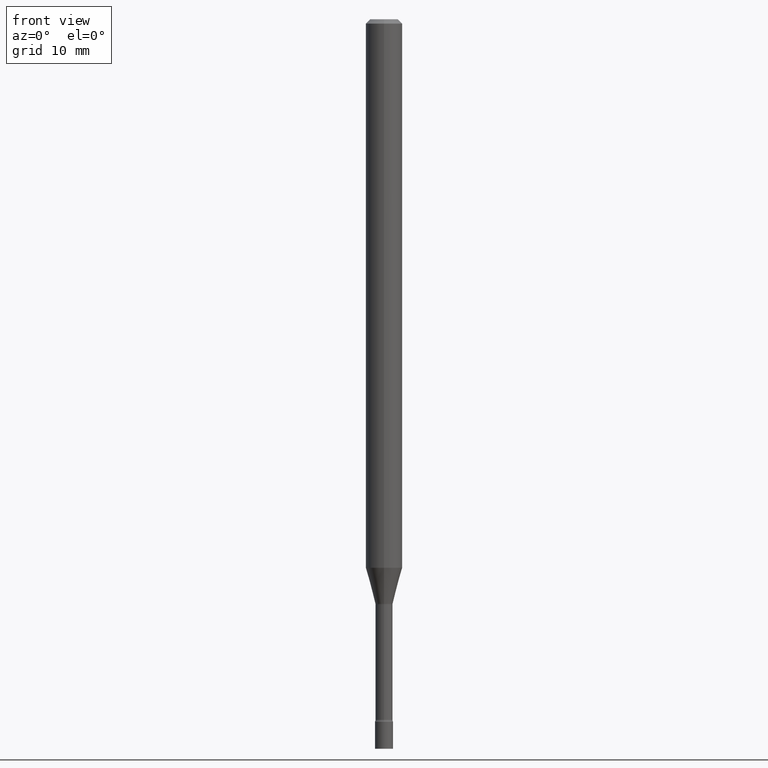
[diagram: clean part render]
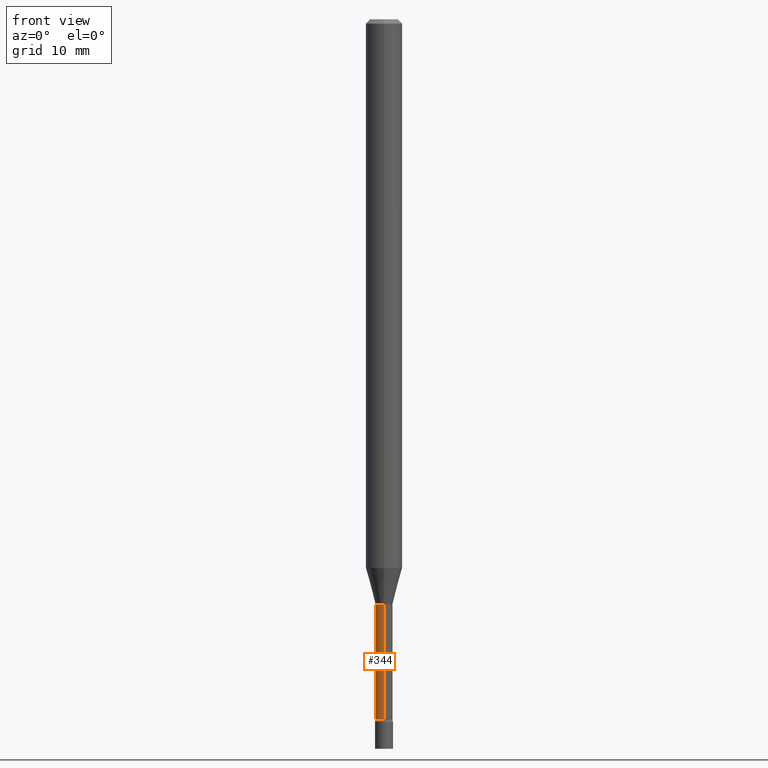
[diagram: same view with one face highlighted and labeled with its STEP entity id]
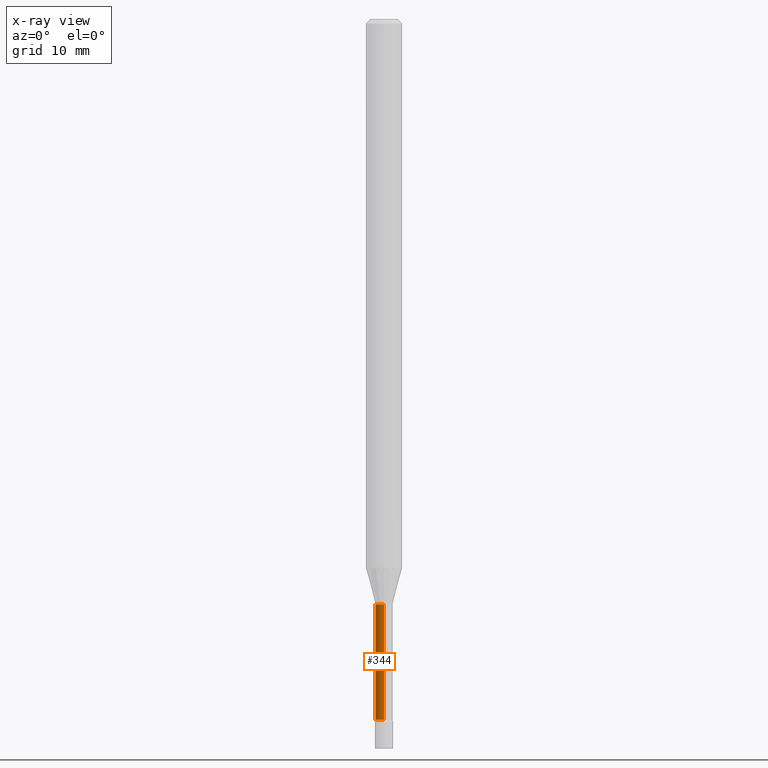
[diagram: x-ray of the same camera — body ghosted, the highlighted face saturated]
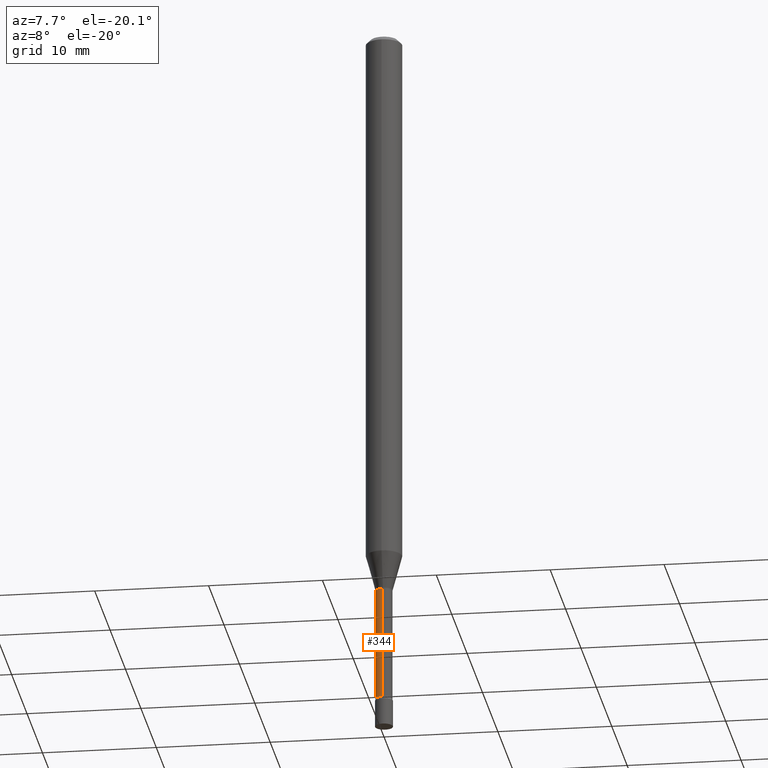
[diagram: same view with one face highlighted and labeled with its STEP entity id]
A machine part, front view. The second image highlights one B-rep face of the part: STEP entity #344.
The next image is the same camera in x-ray: the body ghosted, the highlighted face saturated — about 0% of this face is hidden behind the body in this view.
A second angle (auxiliary view) of the same face is appended — the face is thin or edge-on in the first view.
In plain terms, the highlighted cylindrical surface (edge-blend (fillet) strip) has radius 0.7404 mm, axis along (-0, 0, 1).
Its self-contained STEP definition (entity closure, byte-faithful):
#20 = FACE_OUTER_BOUND ( 'NONE', #420, .T. ) ;
#22 = DIRECTION ( 'NONE',  ( -6.982962677686265922E-15, -1.000000000000000000, 3.491464599128644063E-15 ) ) ;
#25 = CARTESIAN_POINT ( 'NONE',  ( -2.035533620544962127E-16, -0.02915000000000841224, -2.399783525791634897 ) ) ;
#33 = AXIS2_PLACEMENT_3D ( 'NONE', #188, #301, #22 ) ;
#34 = VERTEX_POINT ( 'NONE', #502 ) ;
#41 = AXIS2_PLACEMENT_3D ( 'NONE', #276, #398, #202 ) ;
#84 = CARTESIAN_POINT ( 'NONE',  ( -2.035533620545056051E-16, -0.02915000000000700364, -2.005974787463811193 ) ) ;
#85 = LINE ( 'NONE', #238, #142 ) ;
#94 = EDGE_CURVE ( 'NONE', #388, #473, #287, .T. ) ;
#123 = CARTESIAN_POINT ( 'NONE',  ( 2.136957277799090563E-16, 0.02914999999999165481, -2.399783525791634897 ) ) ;
#138 = DIRECTION ( 'NONE',  ( -6.982962677686265922E-15, -1.000000000000000000, 0.000000000000000000 ) ) ;
#142 = VECTOR ( 'NONE', #477, 39.37007874015748143 ) ;
#146 = ORIENTED_EDGE ( 'NONE', *, *, #263, .F. ) ;
#170 = EDGE_CURVE ( 'NONE', #470, #34, #85, .T. ) ;
#188 = CARTESIAN_POINT ( 'NONE',  ( 0.000000000000000000, 0.000000000000000000, 0.000000000000000000 ) ) ;
#189 = ORIENTED_EDGE ( 'NONE', *, *, #170, .F. ) ;
#202 = DIRECTION ( 'NONE',  ( -6.982962677686265922E-15, -1.000000000000000000, 0.000000000000000000 ) ) ;
#229 = AXIS2_PLACEMENT_3D ( 'NONE', #375, #499, #138 ) ;
#238 = CARTESIAN_POINT ( 'NONE',  ( 2.071232074740692945E-16, 0.02915000000000001618, -1.017761930646000333E-16 ) ) ;
#256 = CIRCLE ( 'NONE', #229, 0.02915000000000003352 ) ;
#263 = EDGE_CURVE ( 'NONE', #34, #473, #510, .T. ) ;
#265 = ORIENTED_EDGE ( 'NONE', *, *, #434, .T. ) ;
#276 = CARTESIAN_POINT ( 'NONE',  ( 4.905572217137893975E-29, -7.003789957174503140E-15, -2.005974787463811193 ) ) ;
#281 = ORIENTED_EDGE ( 'NONE', *, *, #94, .T. ) ;
#287 = LINE ( 'NONE', #300, #360 ) ;
#300 = CARTESIAN_POINT ( 'NONE',  ( -2.035533620545547610E-16, -0.02915000000000001618, 1.017761930646000333E-16 ) ) ;
#301 = DIRECTION ( 'NONE',  ( -2.445480495465296209E-29, 3.491464599128644458E-15, 1.000000000000000000 ) ) ;
#344 = ADVANCED_FACE ( 'NONE', ( #20 ), #451, .T. ) ;
#360 = VECTOR ( 'NONE', #461, 39.37007874015748143 ) ;
#375 = CARTESIAN_POINT ( 'NONE',  ( 5.868623805662381857E-29, -8.378759225873614383E-15, -2.399783525791634897 ) ) ;
#388 = VERTEX_POINT ( 'NONE', #25 ) ;
#398 = DIRECTION ( 'NONE',  ( -2.445480495465296209E-29, 3.491464599128644458E-15, 1.000000000000000000 ) ) ;
#420 = EDGE_LOOP ( 'NONE', ( #189, #265, #281, #146 ) ) ;
#434 = EDGE_CURVE ( 'NONE', #470, #388, #256, .T. ) ;
#451 = CYLINDRICAL_SURFACE ( 'NONE', #33, 0.02915000000000001618 ) ;
#461 = DIRECTION ( 'NONE',  ( -2.445480495465296209E-29, 3.491464599128644063E-15, 1.000000000000000000 ) ) ;
#470 = VERTEX_POINT ( 'NONE', #123 ) ;
#473 = VERTEX_POINT ( 'NONE', #84 ) ;
#477 = DIRECTION ( 'NONE',  ( -2.445480495465296209E-29, 3.491464599128644063E-15, 1.000000000000000000 ) ) ;
#499 = DIRECTION ( 'NONE',  ( -2.445480495465296209E-29, 3.491464599128644458E-15, 1.000000000000000000 ) ) ;
#502 = CARTESIAN_POINT ( 'NONE',  ( 2.071232074741279660E-16, 0.02914999999999299402, -2.005974787463811193 ) ) ;
#510 = CIRCLE ( 'NONE', #41, 0.02914999999999999883 ) ;